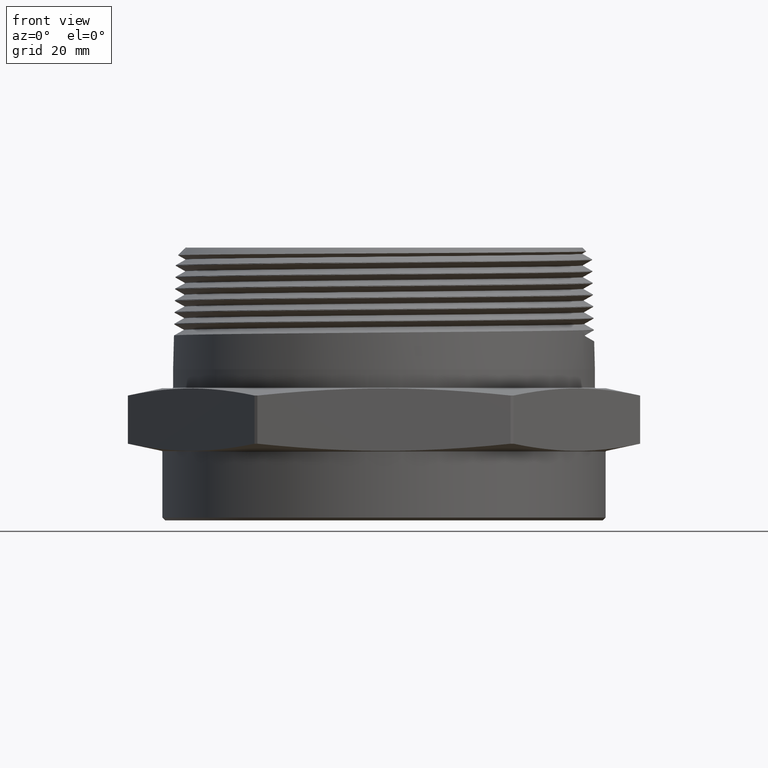
[diagram: clean part render]
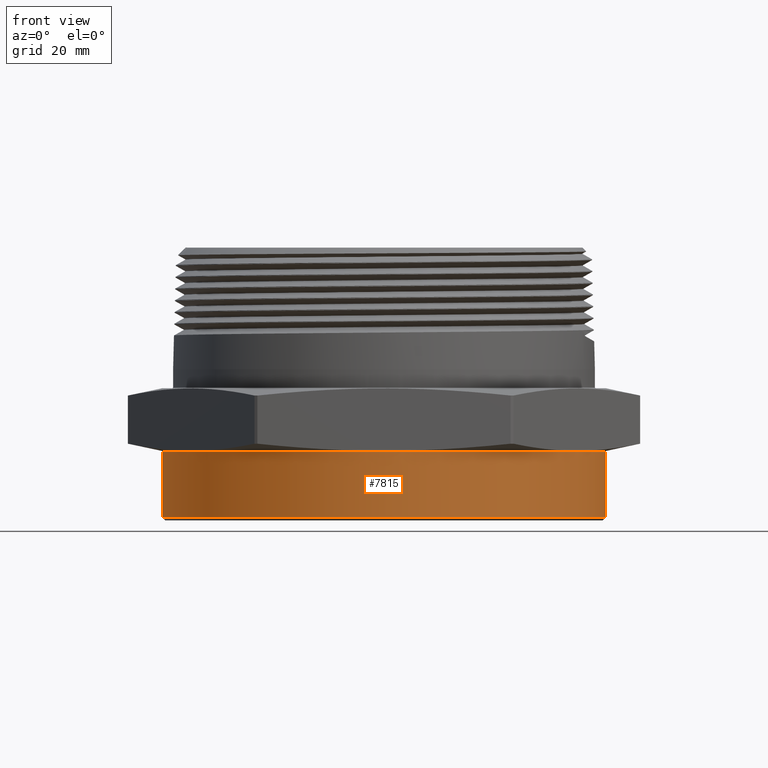
[diagram: same view with one face highlighted and labeled with its STEP entity id]
A machine part, front view. The second image highlights one B-rep face of the part: STEP entity #7815.
In plain terms, the highlighted cylindrical surface (partial cylindrical patch) has radius 60.071 mm, axis along (0, 0, 1).
Its self-contained STEP definition (entity closure, byte-faithful):
#364 = AXIS2_PLACEMENT_3D ( 'NONE', #4217, #4213, #4214 ) ;
#609 = EDGE_CURVE ( 'NONE', #2015, #2020, #7998, .T. ) ;
#646 = AXIS2_PLACEMENT_3D ( 'NONE', #1848, #1849, #1850 ) ;
#670 = AXIS2_PLACEMENT_3D ( 'NONE', #2502, #2503, #2504 ) ;
#1848 = CARTESIAN_POINT ( 'NONE',  ( 0.0000000000000000000, 0.0000000000000000000, -0.7100000000000000800 ) ) ;
#1849 = DIRECTION ( 'NONE',  ( 0.0000000000000000000, 0.0000000000000000000, 1.000000000000000000 ) ) ;
#1850 = DIRECTION ( 'NONE',  ( -1.000000000000000000, 0.0000000000000000000, 0.0000000000000000000 ) ) ;
#1919 = ORIENTED_EDGE ( 'NONE', *, *, #3643, .F. ) ;
#1920 = ORIENTED_EDGE ( 'NONE', *, *, #609, .T. ) ;
#1921 = ORIENTED_EDGE ( 'NONE', *, *, #3645, .T. ) ;
#1922 = ORIENTED_EDGE ( 'NONE', *, *, #3639, .T. ) ;
#2015 = VERTEX_POINT ( 'NONE', #2705 ) ;
#2020 = VERTEX_POINT ( 'NONE', #2710 ) ;
#2021 = VERTEX_POINT ( 'NONE', #2711 ) ;
#2026 = VERTEX_POINT ( 'NONE', #2716 ) ;
#2167 = EDGE_LOOP ( 'NONE', ( #1919, #1920, #1921, #1922 ) ) ;
#2502 = CARTESIAN_POINT ( 'NONE',  ( 0.0000000000000000000, 0.0000000000000000000, -0.008097840331950675500 ) ) ;
#2503 = DIRECTION ( 'NONE',  ( -6.123233995736756200E-017, -0.0000000000000000000, -1.000000000000000000 ) ) ;
#2504 = DIRECTION ( 'NONE',  ( -1.000000000000000000, 0.0000000000000000000, 6.136550725725749800E-017 ) ) ;
#2505 = CARTESIAN_POINT ( 'NONE',  ( 2.365000000000000200, 0.0000000000000000000, -0.7399999999999999900 ) ) ;
#2509 = DIRECTION ( 'NONE',  ( -0.0000000000000000000, -0.0000000000000000000, 1.000000000000000000 ) ) ;
#2513 = DIRECTION ( 'NONE',  ( -0.0000000000000000000, -0.0000000000000000000, 1.000000000000000000 ) ) ;
#2514 = CARTESIAN_POINT ( 'NONE',  ( -2.365000000000000200, 2.896289679983490900E-016, -0.7399999999999999900 ) ) ;
#2705 = CARTESIAN_POINT ( 'NONE',  ( -2.365000000000000200, 2.896289679983490900E-016, -0.7100000000000000800 ) ) ;
#2710 = CARTESIAN_POINT ( 'NONE',  ( 2.365000000000000200, 0.0000000000000000000, -0.7100000000000000800 ) ) ;
#2711 = CARTESIAN_POINT ( 'NONE',  ( -2.365000000000000200, 2.896289679983490900E-016, -0.008097840331950531500 ) ) ;
#2716 = CARTESIAN_POINT ( 'NONE',  ( 2.365000000000000200, 0.0000000000000000000, -0.008097840331950821200 ) ) ;
#3493 = FACE_OUTER_BOUND ( 'NONE', #2167, .T. ) ;
#3500 = CYLINDRICAL_SURFACE ( 'NONE', #364, 2.365000000000000200 ) ;
#3639 = EDGE_CURVE ( 'NONE', #2026, #2021, #8060, .T. ) ;
#3643 = EDGE_CURVE ( 'NONE', #2015, #2021, #8063, .T. ) ;
#3645 = EDGE_CURVE ( 'NONE', #2020, #2026, #8068, .T. ) ;
#4213 = DIRECTION ( 'NONE',  ( -0.0000000000000000000, -0.0000000000000000000, 1.000000000000000000 ) ) ;
#4214 = DIRECTION ( 'NONE',  ( 1.000000000000000000, 0.0000000000000000000, 0.0000000000000000000 ) ) ;
#4217 = CARTESIAN_POINT ( 'NONE',  ( 0.0000000000000000000, 0.0000000000000000000, -0.7399999999999999900 ) ) ;
#7815 = ADVANCED_FACE ( 'NONE', ( #3493 ), #3500, .T. ) ;
#7998 = CIRCLE ( 'NONE', #646, 2.365000000000000200 ) ;
#8060 = CIRCLE ( 'NONE', #670, 2.365000000000000200 ) ;
#8063 = LINE ( 'NONE', #2514, #8067 ) ;
#8067 = VECTOR ( 'NONE', #2509, 39.37007874015748100 ) ;
#8068 = LINE ( 'NONE', #2505, #8070 ) ;
#8070 = VECTOR ( 'NONE', #2513, 39.37007874015748100 ) ;